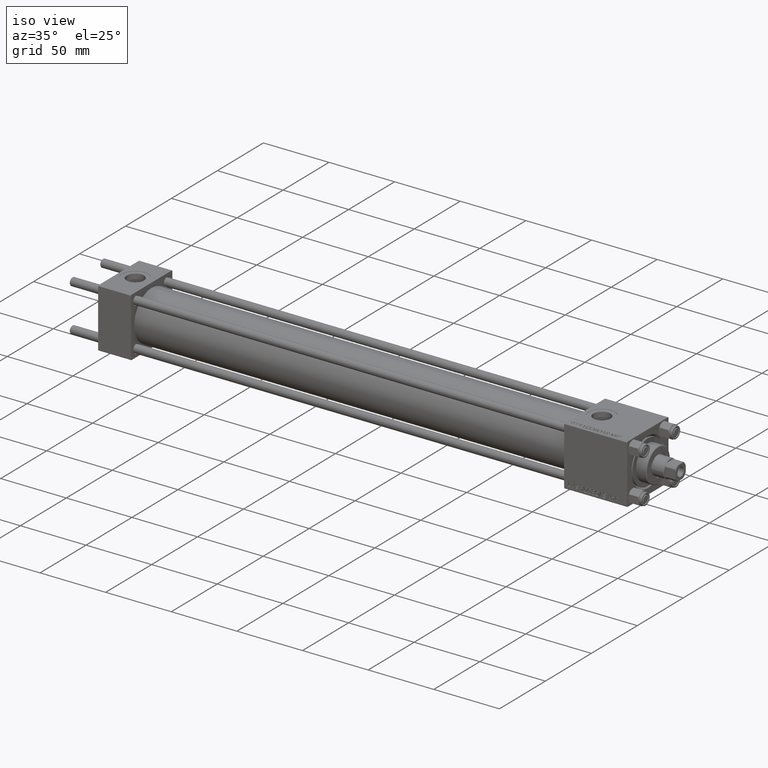
[diagram: clean part render]
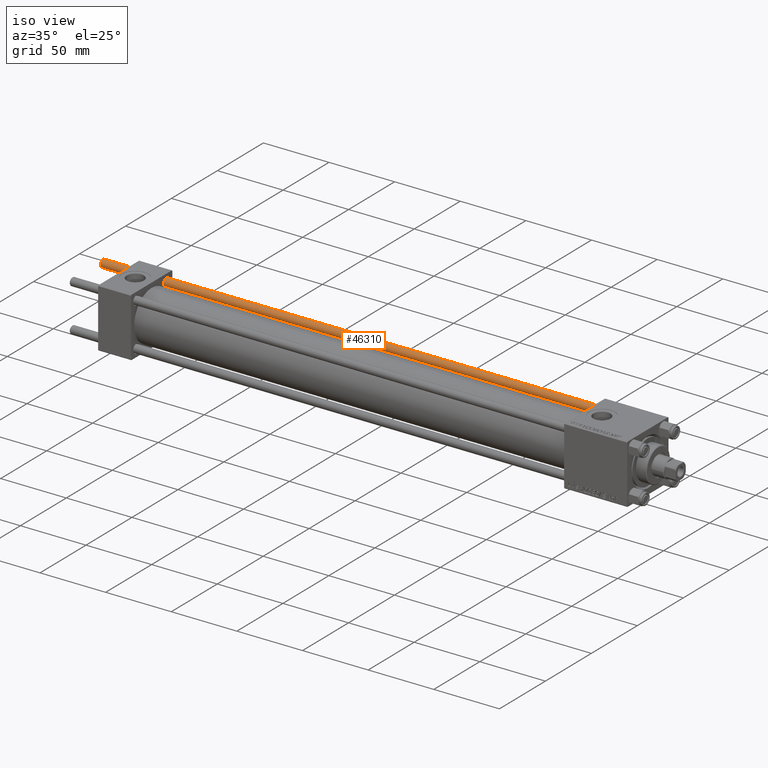
[diagram: same view with one face highlighted and labeled with its STEP entity id]
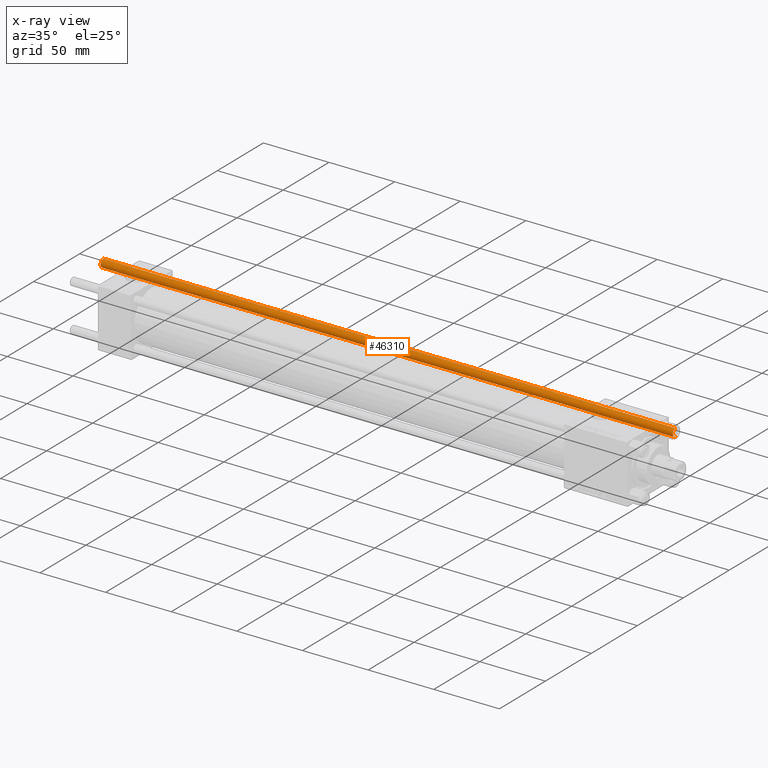
[diagram: x-ray of the same camera — body ghosted, the highlighted face saturated]
A machine part, iso view. The second image highlights one B-rep face of the part: STEP entity #46310.
The next image is the same camera in x-ray: the body ghosted, the highlighted face saturated — about 0% of this face is hidden behind the body in this view.
In plain terms, the highlighted cylindrical surface (edge-blend (fillet) strip) has radius 3 mm, axis along (-1, -0, -0).
Its self-contained STEP definition (entity closure, byte-faithful):
#1576 = VERTEX_POINT ( 'NONE', #14318 ) ;
#2363 = DIRECTION ( 'NONE',  ( -0.000000000000000000, -0.000000000000000000, 1.000000000000000000 ) ) ;
#3511 = LINE ( 'NONE', #45390, #24384 ) ;
#4017 = CARTESIAN_POINT ( 'NONE',  ( 0.000000000000000000, 0.000000000000000000, 436.5000000000000000 ) ) ;
#4178 = AXIS2_PLACEMENT_3D ( 'NONE', #12965, #2363, #28346 ) ;
#4249 = EDGE_LOOP ( 'NONE', ( #15138, #33955, #23681, #37023 ) ) ;
#7223 = AXIS2_PLACEMENT_3D ( 'NONE', #19393, #34752, #39797 ) ;
#10134 = DIRECTION ( 'NONE',  ( -0.000000000000000000, -0.000000000000000000, -1.000000000000000000 ) ) ;
#11991 = CIRCLE ( 'NONE', #47409, 3.000000000000000444 ) ;
#12615 = VERTEX_POINT ( 'NONE', #35552 ) ;
#12965 = CARTESIAN_POINT ( 'NONE',  ( 0.000000000000000000, 0.000000000000000000, 0.5000000000000004441 ) ) ;
#14318 = CARTESIAN_POINT ( 'NONE',  ( 3.000000000000000444, 3.673940397442060361E-16, 436.5000000000000000 ) ) ;
#15138 = ORIENTED_EDGE ( 'NONE', *, *, #20566, .F. ) ;
#15380 = DIRECTION ( 'NONE',  ( 0.000000000000000000, 0.000000000000000000, -1.000000000000000000 ) ) ;
#16977 = CARTESIAN_POINT ( 'NONE',  ( -3.000000000000000444, 0.000000000000000000, 436.5000000000000000 ) ) ;
#18663 = DIRECTION ( 'NONE',  ( -0.000000000000000000, -0.000000000000000000, -1.000000000000000000 ) ) ;
#18696 = CARTESIAN_POINT ( 'NONE',  ( -3.000000000000000444, 0.000000000000000000, 437.0000000000000000 ) ) ;
#18749 = EDGE_CURVE ( 'NONE', #43627, #12615, #21910, .T. ) ;
#19119 = EDGE_CURVE ( 'NONE', #29063, #43627, #44679, .T. ) ;
#19393 = CARTESIAN_POINT ( 'NONE',  ( 0.000000000000000000, 0.000000000000000000, 437.0000000000000000 ) ) ;
#19420 = DIRECTION ( 'NONE',  ( 1.000000000000000000, 0.000000000000000000, 0.000000000000000000 ) ) ;
#19842 = CARTESIAN_POINT ( 'NONE',  ( -3.000000000000000444, 0.000000000000000000, 0.5000000000000004441 ) ) ;
#20566 = EDGE_CURVE ( 'NONE', #1576, #12615, #3511, .T. ) ;
#21910 = CIRCLE ( 'NONE', #4178, 3.000000000000000444 ) ;
#23178 = CYLINDRICAL_SURFACE ( 'NONE', #7223, 3.000000000000000444 ) ;
#23681 = ORIENTED_EDGE ( 'NONE', *, *, #19119, .T. ) ;
#24384 = VECTOR ( 'NONE', #18663, 1000.000000000000000 ) ;
#28331 = VECTOR ( 'NONE', #10134, 1000.000000000000000 ) ;
#28346 = DIRECTION ( 'NONE',  ( 1.000000000000000000, 0.000000000000000000, 0.000000000000000000 ) ) ;
#29063 = VERTEX_POINT ( 'NONE', #16977 ) ;
#33955 = ORIENTED_EDGE ( 'NONE', *, *, #39499, .T. ) ;
#34752 = DIRECTION ( 'NONE',  ( -0.000000000000000000, -0.000000000000000000, -1.000000000000000000 ) ) ;
#35552 = CARTESIAN_POINT ( 'NONE',  ( 3.000000000000000444, 3.673940397442060361E-16, 0.5000000000000004441 ) ) ;
#37023 = ORIENTED_EDGE ( 'NONE', *, *, #18749, .T. ) ;
#39064 = FACE_OUTER_BOUND ( 'NONE', #4249, .T. ) ;
#39499 = EDGE_CURVE ( 'NONE', #1576, #29063, #11991, .T. ) ;
#39797 = DIRECTION ( 'NONE',  ( -1.000000000000000000, 0.000000000000000000, 0.000000000000000000 ) ) ;
#43627 = VERTEX_POINT ( 'NONE', #19842 ) ;
#44679 = LINE ( 'NONE', #18696, #28331 ) ;
#45390 = CARTESIAN_POINT ( 'NONE',  ( 3.000000000000000444, 3.673940397442060361E-16, 437.0000000000000000 ) ) ;
#46310 = ADVANCED_FACE ( 'NONE', ( #39064 ), #23178, .T. ) ;
#47409 = AXIS2_PLACEMENT_3D ( 'NONE', #4017, #15380, #19420 ) ;